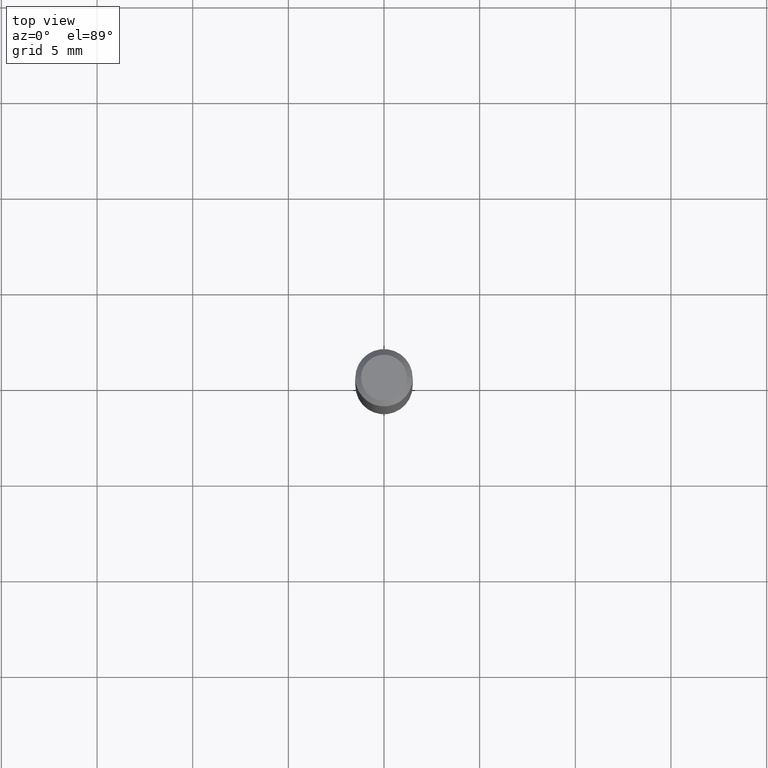
[diagram: clean part render]
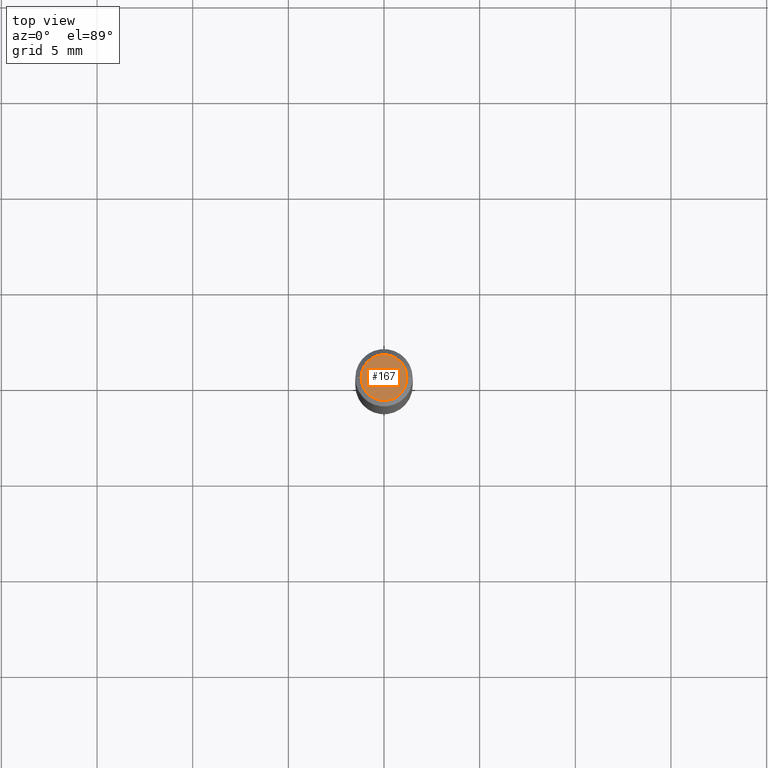
[diagram: same view with one face highlighted and labeled with its STEP entity id]
A machine part, top view. The second image highlights one B-rep face of the part: STEP entity #167.
In plain terms, the highlighted planar face has unit normal (0, -0, -1).
Its self-contained STEP definition (entity closure, byte-faithful):
#15 = VERTEX_POINT ( 'NONE', #177 ) ;
#51 = EDGE_CURVE ( 'NONE', #15, #134, #151, .T. ) ;
#87 = DIRECTION ( 'NONE',  ( -1.000000000000000000, 6.982962677686265922E-15, -4.876176775795935793E-29 ) ) ;
#113 = DIRECTION ( 'NONE',  ( 2.438088387897960049E-29, -3.491481338843145188E-15, -1.000000000000000000 ) ) ;
#134 = VERTEX_POINT ( 'NONE', #385 ) ;
#151 = CIRCLE ( 'NONE', #333, 0.04724000000000000421 ) ;
#166 = AXIS2_PLACEMENT_3D ( 'NONE', #301, #113, #87 ) ;
#167 = ADVANCED_FACE ( 'NONE', ( #227 ), #378, .F. ) ;
#177 = CARTESIAN_POINT ( 'NONE',  ( -0.04724000000000000421, 3.504923541997677355E-16, -3.380025165670481712E-19 ) ) ;
#210 = ORIENTED_EDGE ( 'NONE', *, *, #51, .T. ) ;
#217 = AXIS2_PLACEMENT_3D ( 'NONE', #235, #267, #226 ) ;
#226 = DIRECTION ( 'NONE',  ( 1.000000000000000000, -6.982962677686266711E-15, 4.876185090822587894E-29 ) ) ;
#227 = FACE_OUTER_BOUND ( 'NONE', #290, .T. ) ;
#235 = CARTESIAN_POINT ( 'NONE',  ( 8.265746106709734507E-48, -1.180129479067563789E-33, -3.380025165646692144E-19 ) ) ;
#267 = DIRECTION ( 'NONE',  ( -2.445468806185136597E-29, 3.491481338843145583E-15, 1.000000000000000000 ) ) ;
#290 = EDGE_LOOP ( 'NONE', ( #210, #387 ) ) ;
#301 = CARTESIAN_POINT ( 'NONE',  ( 4.132873053354867254E-48, -5.900647395337818946E-34, -1.690012582823346072E-19 ) ) ;
#333 = AXIS2_PLACEMENT_3D ( 'NONE', #382, #449, #418 ) ;
#359 = CIRCLE ( 'NONE', #217, 0.04724000000000000421 ) ;
#378 = PLANE ( 'NONE',  #166 ) ;
#382 = CARTESIAN_POINT ( 'NONE',  ( 8.265746106709734507E-48, -1.180129479067563789E-33, -3.380025165646692144E-19 ) ) ;
#385 = CARTESIAN_POINT ( 'NONE',  ( 0.04724000000000000421, -3.852183633974369345E-16, -3.380025165621689721E-19 ) ) ;
#387 = ORIENTED_EDGE ( 'NONE', *, *, #401, .T. ) ;
#401 = EDGE_CURVE ( 'NONE', #134, #15, #359, .T. ) ;
#418 = DIRECTION ( 'NONE',  ( 1.000000000000000000, -6.982962677686266711E-15, 4.876185090822587894E-29 ) ) ;
#449 = DIRECTION ( 'NONE',  ( -2.445468806185136597E-29, 3.491481338843145583E-15, 1.000000000000000000 ) ) ;